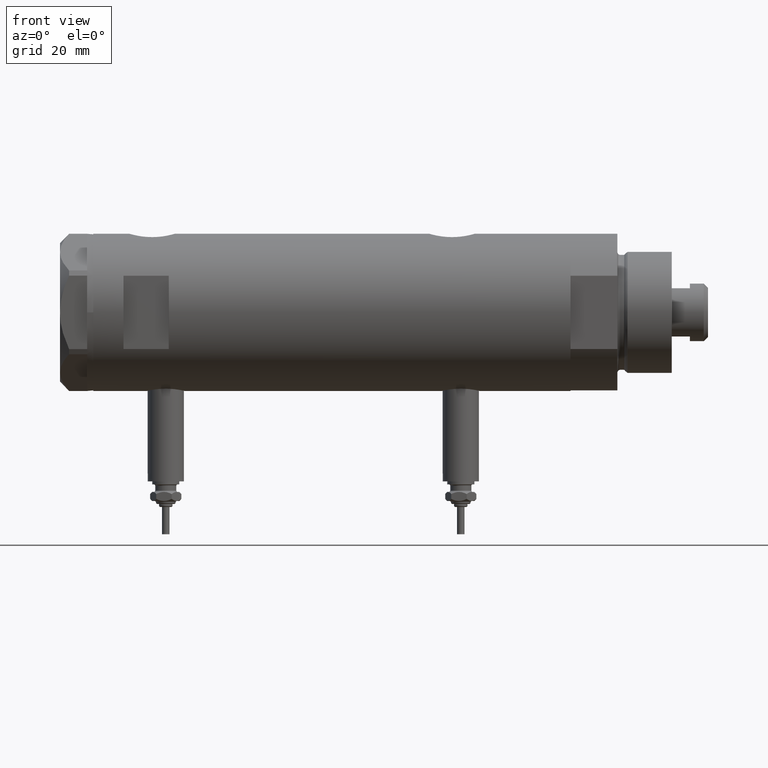
[diagram: clean part render]
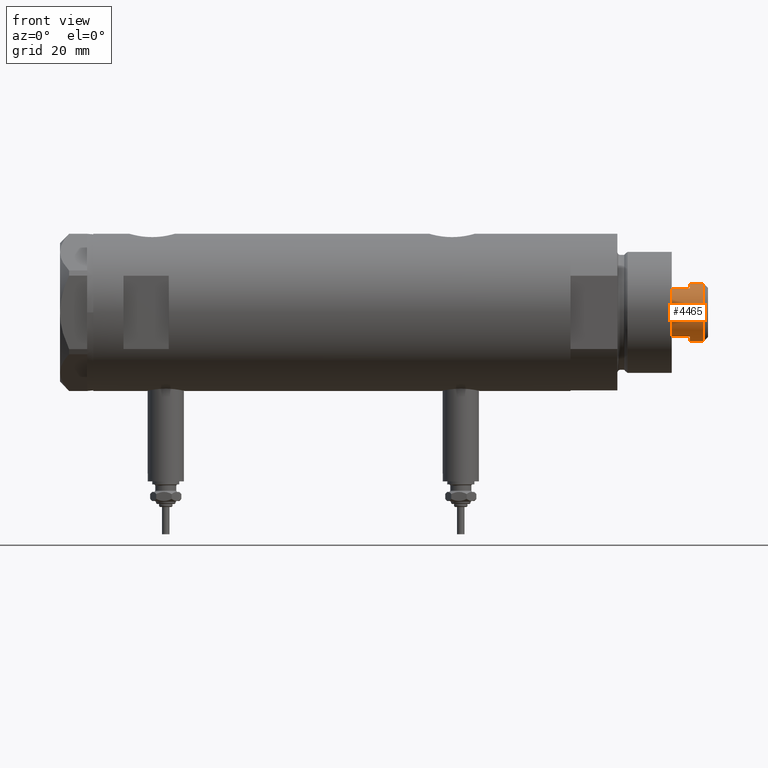
[diagram: same view with one face highlighted and labeled with its STEP entity id]
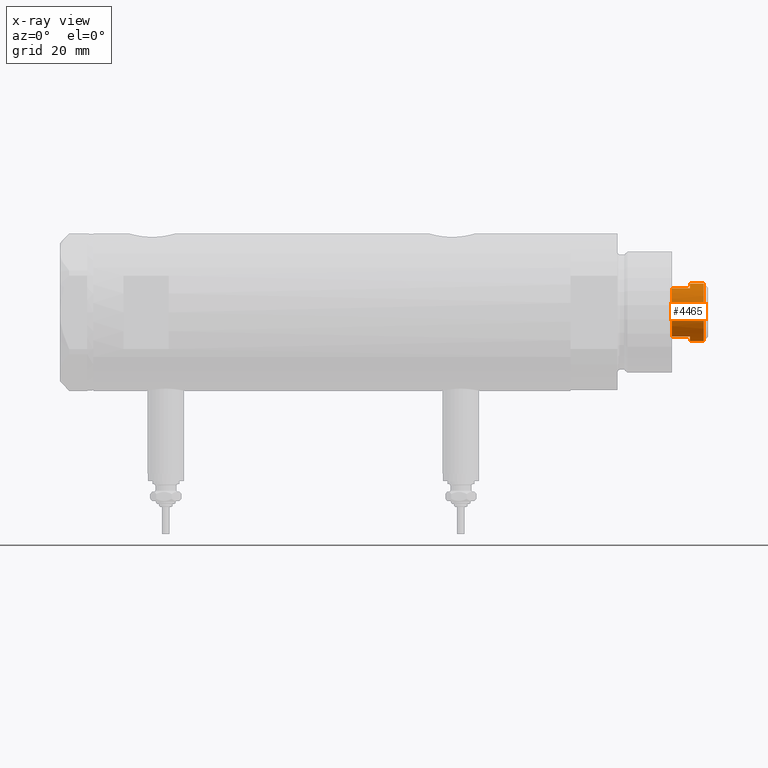
[diagram: x-ray of the same camera — body ghosted, the highlighted face saturated]
A machine part, front view. The second image highlights one B-rep face of the part: STEP entity #4465.
The next image is the same camera in x-ray: the body ghosted, the highlighted face saturated — about 0% of this face is hidden behind the body in this view.
In plain terms, the highlighted cylindrical surface (edge-blend (fillet) strip) has radius 9.5 mm, axis along (-1, -0, 0).
Its self-contained STEP definition (entity closure, byte-faithful):
#28 = DIRECTION ( 'NONE',  ( -0.000000000000000000, -0.000000000000000000, -1.000000000000000000 ) ) ;
#91 = AXIS2_PLACEMENT_3D ( 'NONE', #6246, #4325, #6277 ) ;
#248 = CARTESIAN_POINT ( 'NONE',  ( -9.500000000000001776, 0.000000000000000000, 178.2000000000000171 ) ) ;
#282 = ORIENTED_EDGE ( 'NONE', *, *, #4699, .F. ) ;
#301 = VECTOR ( 'NONE', #1228, 1000.000000000000000 ) ;
#862 = LINE ( 'NONE', #3863, #4271 ) ;
#960 = DIRECTION ( 'NONE',  ( 1.000000000000000000, 0.000000000000000000, 0.000000000000000000 ) ) ;
#968 = CARTESIAN_POINT ( 'NONE',  ( 0.000000000000000000, 0.000000000000000000, 167.6000000000000227 ) ) ;
#1087 = EDGE_CURVE ( 'NONE', #3345, #6312, #3143, .T. ) ;
#1117 = LINE ( 'NONE', #3095, #5529 ) ;
#1187 = ORIENTED_EDGE ( 'NONE', *, *, #1649, .T. ) ;
#1228 = DIRECTION ( 'NONE',  ( -0.000000000000000000, -0.000000000000000000, -1.000000000000000000 ) ) ;
#1388 = VERTEX_POINT ( 'NONE', #6125 ) ;
#1406 = AXIS2_PLACEMENT_3D ( 'NONE', #4301, #3247, #3760 ) ;
#1407 = DIRECTION ( 'NONE',  ( 1.000000000000000000, 0.000000000000000000, 0.000000000000000000 ) ) ;
#1549 = LINE ( 'NONE', #5003, #1654 ) ;
#1649 = EDGE_CURVE ( 'NONE', #2746, #3170, #3042, .T. ) ;
#1654 = VECTOR ( 'NONE', #2985, 1000.000000000000000 ) ;
#1704 = CARTESIAN_POINT ( 'NONE',  ( -7.982950582334825462, -5.150000000000003020, 173.6000000000000227 ) ) ;
#1936 = EDGE_CURVE ( 'NONE', #6312, #2746, #862, .T. ) ;
#1981 = DIRECTION ( 'NONE',  ( -1.000000000000000000, 0.000000000000000000, 0.000000000000000000 ) ) ;
#2100 = DIRECTION ( 'NONE',  ( -0.000000000000000000, -0.000000000000000000, -1.000000000000000000 ) ) ;
#2391 = EDGE_CURVE ( 'NONE', #2485, #4593, #4889, .T. ) ;
#2441 = ORIENTED_EDGE ( 'NONE', *, *, #1087, .T. ) ;
#2485 = VERTEX_POINT ( 'NONE', #2857 ) ;
#2629 = LINE ( 'NONE', #3655, #301 ) ;
#2746 = VERTEX_POINT ( 'NONE', #3918 ) ;
#2829 = ORIENTED_EDGE ( 'NONE', *, *, #1936, .T. ) ;
#2857 = CARTESIAN_POINT ( 'NONE',  ( -7.982950582334825462, -5.150000000000042988, 167.6000000000000227 ) ) ;
#2985 = DIRECTION ( 'NONE',  ( -0.000000000000000000, -0.000000000000000000, -1.000000000000000000 ) ) ;
#3042 = CIRCLE ( 'NONE', #91, 9.500000000000000000 ) ;
#3095 = CARTESIAN_POINT ( 'NONE',  ( 9.500000000000001776, 1.163414459189985682E-15, 173.6000000000000227 ) ) ;
#3143 = CIRCLE ( 'NONE', #1406, 9.500000000000001776 ) ;
#3170 = VERTEX_POINT ( 'NONE', #1704 ) ;
#3214 = EDGE_CURVE ( 'NONE', #3170, #2485, #2629, .T. ) ;
#3247 = DIRECTION ( 'NONE',  ( 0.000000000000000000, 0.000000000000000000, -1.000000000000000000 ) ) ;
#3262 = CARTESIAN_POINT ( 'NONE',  ( 9.500000000000001776, 1.163414459189985682E-15, 178.2000000000000171 ) ) ;
#3311 = EDGE_LOOP ( 'NONE', ( #282, #2441, #2829, #1187, #4326, #4711, #5087, #6144 ) ) ;
#3345 = VERTEX_POINT ( 'NONE', #3262 ) ;
#3467 = CARTESIAN_POINT ( 'NONE',  ( 9.500000000000000000, 1.163414459189985485E-15, 173.6000000000000227 ) ) ;
#3501 = AXIS2_PLACEMENT_3D ( 'NONE', #5302, #5364, #960 ) ;
#3655 = CARTESIAN_POINT ( 'NONE',  ( -7.982950582334829015, -5.150000000000001243, 173.6000000000000227 ) ) ;
#3744 = VERTEX_POINT ( 'NONE', #3467 ) ;
#3760 = DIRECTION ( 'NONE',  ( 1.000000000000000000, 0.000000000000000000, 0.000000000000000000 ) ) ;
#3863 = CARTESIAN_POINT ( 'NONE',  ( -9.500000000000001776, 0.000000000000000000, 173.6000000000000227 ) ) ;
#3918 = CARTESIAN_POINT ( 'NONE',  ( -9.500000000000000000, 0.000000000000000000, 173.6000000000000227 ) ) ;
#4271 = VECTOR ( 'NONE', #5813, 1000.000000000000000 ) ;
#4301 = CARTESIAN_POINT ( 'NONE',  ( 0.000000000000000000, 0.000000000000000000, 178.2000000000000171 ) ) ;
#4325 = DIRECTION ( 'NONE',  ( 0.000000000000000000, 0.000000000000000000, 1.000000000000000000 ) ) ;
#4326 = ORIENTED_EDGE ( 'NONE', *, *, #3214, .T. ) ;
#4336 = CARTESIAN_POINT ( 'NONE',  ( 0.000000000000000000, 0.000000000000000000, 173.6000000000000227 ) ) ;
#4402 = CYLINDRICAL_SURFACE ( 'NONE', #6238, 9.500000000000001776 ) ;
#4465 = ADVANCED_FACE ( 'NONE', ( #5904 ), #4402, .T. ) ;
#4593 = VERTEX_POINT ( 'NONE', #5973 ) ;
#4699 = EDGE_CURVE ( 'NONE', #3345, #3744, #1117, .T. ) ;
#4711 = ORIENTED_EDGE ( 'NONE', *, *, #2391, .T. ) ;
#4788 = AXIS2_PLACEMENT_3D ( 'NONE', #968, #5724, #1407 ) ;
#4889 = CIRCLE ( 'NONE', #4788, 9.500000000000001776 ) ;
#5003 = CARTESIAN_POINT ( 'NONE',  ( 7.982950582334832568, -5.149999999999997691, 173.6000000000000227 ) ) ;
#5087 = ORIENTED_EDGE ( 'NONE', *, *, #5109, .F. ) ;
#5109 = EDGE_CURVE ( 'NONE', #1388, #4593, #1549, .T. ) ;
#5302 = CARTESIAN_POINT ( 'NONE',  ( 0.000000000000000000, 0.000000000000000000, 173.6000000000000227 ) ) ;
#5364 = DIRECTION ( 'NONE',  ( 0.000000000000000000, 0.000000000000000000, 1.000000000000000000 ) ) ;
#5529 = VECTOR ( 'NONE', #2100, 1000.000000000000000 ) ;
#5724 = DIRECTION ( 'NONE',  ( 0.000000000000000000, 0.000000000000000000, 1.000000000000000000 ) ) ;
#5791 = EDGE_CURVE ( 'NONE', #1388, #3744, #6254, .T. ) ;
#5813 = DIRECTION ( 'NONE',  ( -0.000000000000000000, -0.000000000000000000, -1.000000000000000000 ) ) ;
#5904 = FACE_OUTER_BOUND ( 'NONE', #3311, .T. ) ;
#5973 = CARTESIAN_POINT ( 'NONE',  ( 7.982950582334834344, -5.150000000000034994, 167.6000000000000227 ) ) ;
#6125 = CARTESIAN_POINT ( 'NONE',  ( 7.982950582334832568, -5.149999999999997691, 173.6000000000000227 ) ) ;
#6144 = ORIENTED_EDGE ( 'NONE', *, *, #5791, .T. ) ;
#6238 = AXIS2_PLACEMENT_3D ( 'NONE', #4336, #28, #1981 ) ;
#6246 = CARTESIAN_POINT ( 'NONE',  ( 0.000000000000000000, 0.000000000000000000, 173.6000000000000227 ) ) ;
#6254 = CIRCLE ( 'NONE', #3501, 9.500000000000000000 ) ;
#6277 = DIRECTION ( 'NONE',  ( 1.000000000000000000, 0.000000000000000000, 0.000000000000000000 ) ) ;
#6312 = VERTEX_POINT ( 'NONE', #248 ) ;